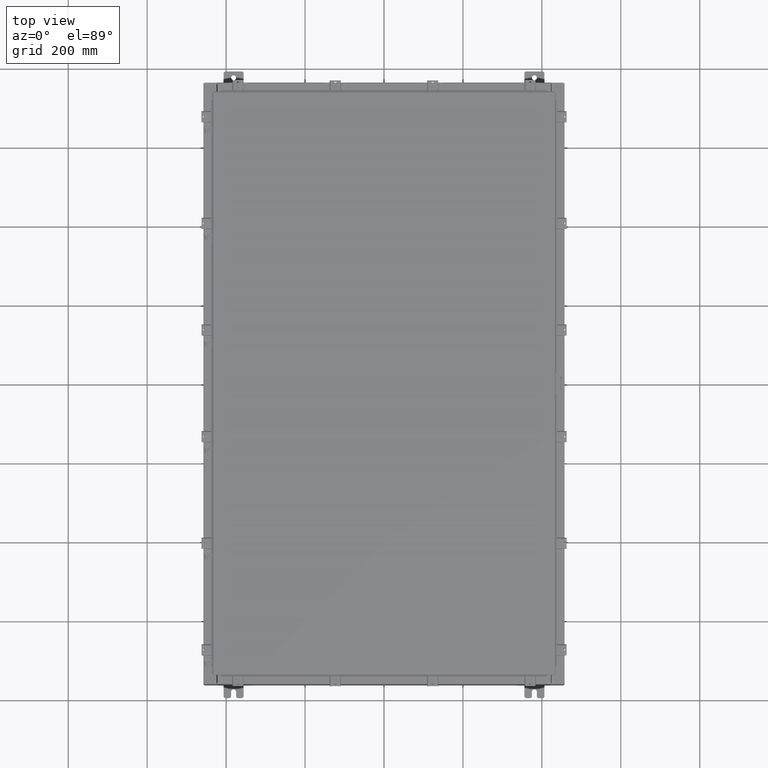
[diagram: clean part render]
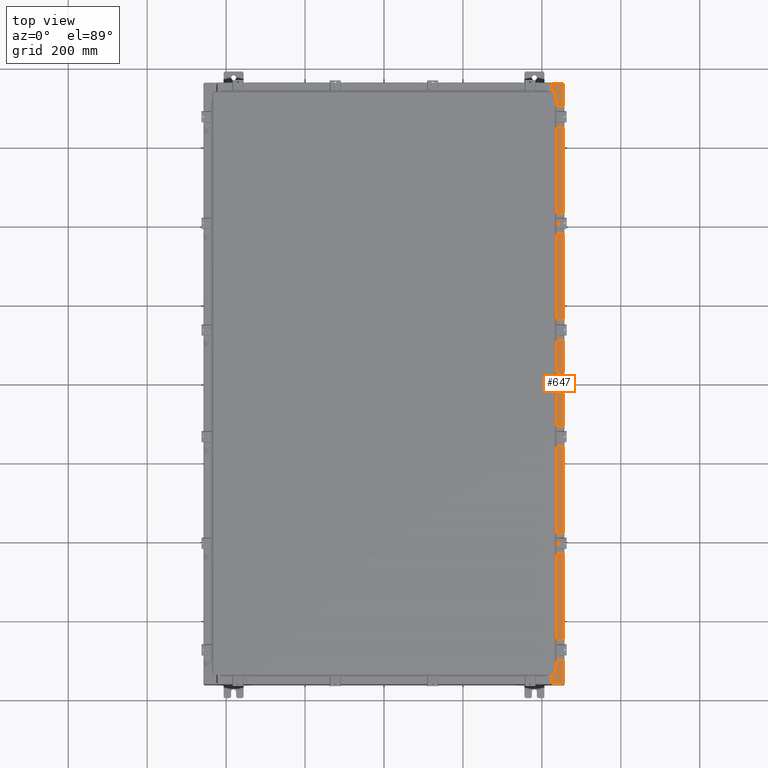
[diagram: same view with one face highlighted and labeled with its STEP entity id]
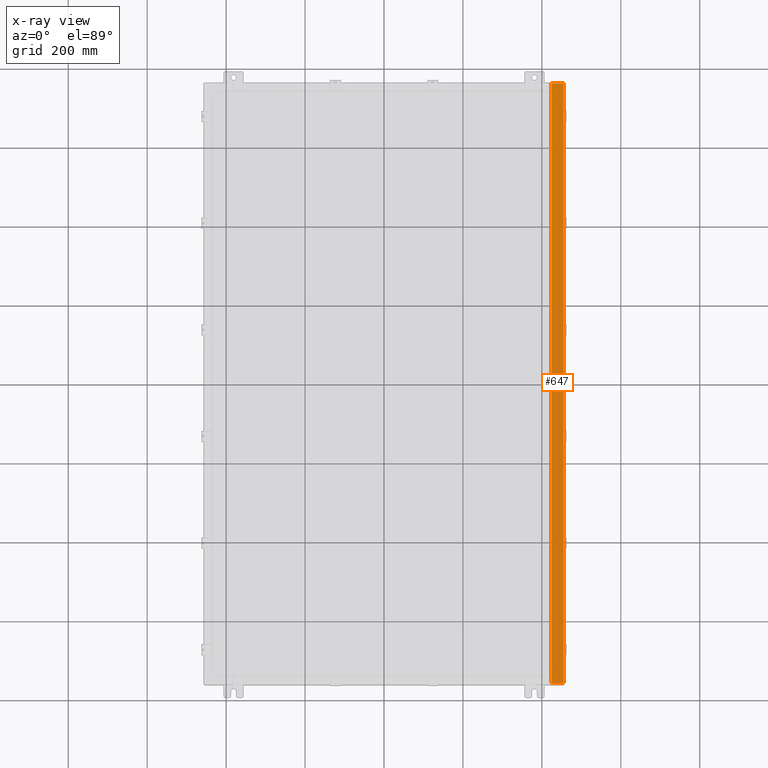
[diagram: x-ray of the same camera — body ghosted, the highlighted face saturated]
A machine part, top view. The second image highlights one B-rep face of the part: STEP entity #647.
The next image is the same camera in x-ray: the body ghosted, the highlighted face saturated — about 0% of this face is hidden behind the body in this view.
In plain terms, the highlighted planar face has unit normal (-0, -0, -1).
Its self-contained STEP definition (entity closure, byte-faithful):
#195 = CARTESIAN_POINT ( 'NONE',  ( 16.71270000000003000, 28.59374999999999600, 7.925300000000008900 ) ) ;
#441 = VERTEX_POINT ( 'NONE', #4535 ) ;
#647 = ADVANCED_FACE ( 'NONE', ( #4563 ), #13197, .F. ) ;
#787 = VECTOR ( 'NONE', #19413, 39.37007874015748100 ) ;
#1006 = CARTESIAN_POINT ( 'NONE',  ( 16.69970000000002800, -28.63110000000000700, 7.925300000000008900 ) ) ;
#1179 = EDGE_CURVE ( 'NONE', #20859, #7650, #25915, .T. ) ;
#1413 = VECTOR ( 'NONE', #18054, 39.37007874015748100 ) ;
#1577 = VERTEX_POINT ( 'NONE', #26457 ) ;
#1637 = LINE ( 'NONE', #23400, #22996 ) ;
#1984 = ORIENTED_EDGE ( 'NONE', *, *, #19063, .F. ) ;
#2291 = EDGE_CURVE ( 'NONE', #17408, #1577, #4474, .T. ) ;
#2448 = EDGE_CURVE ( 'NONE', #5107, #1577, #23184, .T. ) ;
#2490 = ORIENTED_EDGE ( 'NONE', *, *, #23996, .T. ) ;
#2653 = CARTESIAN_POINT ( 'NONE',  ( 16.75005000000003000, -28.59375000000001100, 7.925300000000007100 ) ) ;
#2856 = ORIENTED_EDGE ( 'NONE', *, *, #21561, .T. ) ;
#2900 = DIRECTION ( 'NONE',  ( -1.000000000000000000, 0.0000000000000000000, 6.241167087353087800E-015 ) ) ;
#2935 = CIRCLE ( 'NONE', #19485, 0.01867499999999949400 ) ;
#3303 = EDGE_CURVE ( 'NONE', #7650, #11279, #7122, .T. ) ;
#4474 = LINE ( 'NONE', #24817, #27194 ) ;
#4535 = CARTESIAN_POINT ( 'NONE',  ( 16.69970000000002800, -28.63110000000000700, 7.925300000000008900 ) ) ;
#4563 = FACE_OUTER_BOUND ( 'NONE', #24224, .T. ) ;
#4640 = EDGE_CURVE ( 'NONE', #441, #11582, #23423, .T. ) ;
#5107 = VERTEX_POINT ( 'NONE', #18797 ) ;
#6030 = VERTEX_POINT ( 'NONE', #13336 ) ;
#6243 = VECTOR ( 'NONE', #21884, 39.37007874015748100 ) ;
#6955 = CARTESIAN_POINT ( 'NONE',  ( 16.69970000000002800, 1.446983983731986500E-016, 7.925300000000008900 ) ) ;
#7122 = LINE ( 'NONE', #195, #787 ) ;
#7650 = VERTEX_POINT ( 'NONE', #9149 ) ;
#8640 = EDGE_CURVE ( 'NONE', #441, #5107, #27625, .T. ) ;
#8735 = CARTESIAN_POINT ( 'NONE',  ( 17.91230000000002300, 29.92529999999999300, 7.925300000000000000 ) ) ;
#9149 = CARTESIAN_POINT ( 'NONE',  ( 16.71270000000003000, 28.59374999999999600, 7.925300000000008900 ) ) ;
#9251 = VECTOR ( 'NONE', #11170, 39.37007874015748100 ) ;
#9351 = CARTESIAN_POINT ( 'NONE',  ( 4.972393517341169600E-014, 29.92529999999999300, 7.925300000000111900 ) ) ;
#9553 = CARTESIAN_POINT ( 'NONE',  ( 16.71270000000003000, -28.59375000000001100, 7.925300000000008900 ) ) ;
#9654 = AXIS2_PLACEMENT_3D ( 'NONE', #24300, #11546, #26450 ) ;
#10673 = CARTESIAN_POINT ( 'NONE',  ( 16.75005000000003000, 28.63109999999999600, 7.925300000000008900 ) ) ;
#11050 = DIRECTION ( 'NONE',  ( 1.000000000000000000, 0.0000000000000000000, -6.241167087353087800E-015 ) ) ;
#11170 = DIRECTION ( 'NONE',  ( -1.000000000000000000, 0.0000000000000000000, 0.0000000000000000000 ) ) ;
#11279 = VERTEX_POINT ( 'NONE', #17281 ) ;
#11546 = DIRECTION ( 'NONE',  ( 6.241167087353086200E-015, 1.825778183452973300E-017, 1.000000000000000000 ) ) ;
#11582 = VERTEX_POINT ( 'NONE', #12390 ) ;
#11882 = CARTESIAN_POINT ( 'NONE',  ( 4.972393517341169600E-014, -29.92530000000001100, 7.925300000000113700 ) ) ;
#12054 = CARTESIAN_POINT ( 'NONE',  ( 16.75005000000003000, -28.61242500000000900, 7.925300000000008900 ) ) ;
#12390 = CARTESIAN_POINT ( 'NONE',  ( 16.75005000000003000, -28.63110000000000700, 7.925300000000008900 ) ) ;
#12499 = VECTOR ( 'NONE', #11050, 39.37007874015748100 ) ;
#13197 = PLANE ( 'NONE',  #24302 ) ;
#13336 = CARTESIAN_POINT ( 'NONE',  ( 16.75005000000003000, 28.63109999999999600, 7.925300000000007100 ) ) ;
#13610 = CARTESIAN_POINT ( 'NONE',  ( 16.69970000000002800, 29.92529999999999300, 7.925300000000008900 ) ) ;
#14231 = DIRECTION ( 'NONE',  ( 1.000000000000000000, 0.0000000000000000000, 0.0000000000000000000 ) ) ;
#16097 = ORIENTED_EDGE ( 'NONE', *, *, #3303, .F. ) ;
#16208 = ORIENTED_EDGE ( 'NONE', *, *, #8640, .T. ) ;
#17006 = DIRECTION ( 'NONE',  ( 0.0000000000000000000, -1.000000000000000000, 1.825778183452973300E-017 ) ) ;
#17281 = CARTESIAN_POINT ( 'NONE',  ( 16.75005000000003000, 28.59374999999999600, 7.925300000000007100 ) ) ;
#17408 = VERTEX_POINT ( 'NONE', #8735 ) ;
#18054 = DIRECTION ( 'NONE',  ( 1.000000000000000000, 0.0000000000000000000, 0.0000000000000000000 ) ) ;
#18103 = VECTOR ( 'NONE', #23432, 39.37007874015748100 ) ;
#18139 = VERTEX_POINT ( 'NONE', #13610 ) ;
#18158 = EDGE_CURVE ( 'NONE', #11279, #6030, #19980, .T. ) ;
#18208 = ORIENTED_EDGE ( 'NONE', *, *, #20070, .F. ) ;
#18577 = VERTEX_POINT ( 'NONE', #19073 ) ;
#18797 = CARTESIAN_POINT ( 'NONE',  ( 16.69970000000002800, -29.92530000000001100, 7.925300000000009800 ) ) ;
#19053 = DIRECTION ( 'NONE',  ( -6.241167087353086200E-015, -1.825778183452973300E-017, -1.000000000000000000 ) ) ;
#19063 = EDGE_CURVE ( 'NONE', #11582, #22810, #2935, .T. ) ;
#19073 = CARTESIAN_POINT ( 'NONE',  ( 16.69970000000002800, 28.63109999999998900, 7.925300000000008900 ) ) ;
#19413 = DIRECTION ( 'NONE',  ( 1.000000000000000000, 0.0000000000000000000, 0.0000000000000000000 ) ) ;
#19485 = AXIS2_PLACEMENT_3D ( 'NONE', #12054, #26983, #14231 ) ;
#19957 = CARTESIAN_POINT ( 'NONE',  ( 4.972393517341169600E-014, 1.446983983732005500E-016, 7.925300000000111900 ) ) ;
#19980 = CIRCLE ( 'NONE', #9654, 0.01867499999999949400 ) ;
#20043 = DIRECTION ( 'NONE',  ( -1.000000000000000000, 0.0000000000000000000, 6.241167087353086200E-015 ) ) ;
#20070 = EDGE_CURVE ( 'NONE', #22810, #20859, #26268, .T. ) ;
#20258 = VECTOR ( 'NONE', #27081, 39.37007874015748100 ) ;
#20737 = ORIENTED_EDGE ( 'NONE', *, *, #1179, .F. ) ;
#20760 = ORIENTED_EDGE ( 'NONE', *, *, #4640, .F. ) ;
#20859 = VERTEX_POINT ( 'NONE', #9553 ) ;
#21561 = EDGE_CURVE ( 'NONE', #17408, #18139, #25185, .T. ) ;
#21884 = DIRECTION ( 'NONE',  ( 0.0000000000000000000, -1.000000000000000000, 1.825778183452973300E-017 ) ) ;
#22810 = VERTEX_POINT ( 'NONE', #2653 ) ;
#22996 = VECTOR ( 'NONE', #17006, 39.37007874015748100 ) ;
#23073 = CARTESIAN_POINT ( 'NONE',  ( 16.71270000000003000, -28.59375000000001400, 7.925300000000008900 ) ) ;
#23184 = LINE ( 'NONE', #11882, #12499 ) ;
#23313 = EDGE_CURVE ( 'NONE', #6030, #18577, #23762, .T. ) ;
#23400 = CARTESIAN_POINT ( 'NONE',  ( 16.69970000000002800, 1.446983983731986500E-016, 7.925300000000008900 ) ) ;
#23423 = LINE ( 'NONE', #1006, #1413 ) ;
#23432 = DIRECTION ( 'NONE',  ( -1.000000000000000000, 0.0000000000000000000, 0.0000000000000000000 ) ) ;
#23762 = LINE ( 'NONE', #10673, #18103 ) ;
#23821 = ORIENTED_EDGE ( 'NONE', *, *, #18158, .F. ) ;
#23996 = EDGE_CURVE ( 'NONE', #18139, #18577, #1637, .T. ) ;
#24224 = EDGE_LOOP ( 'NONE', ( #20760, #16208, #26190, #25543, #2856, #2490, #24947, #23821, #16097, #20737, #18208, #1984 ) ) ;
#24300 = CARTESIAN_POINT ( 'NONE',  ( 16.75005000000003000, 28.61242499999999500, 7.925300000000008900 ) ) ;
#24302 = AXIS2_PLACEMENT_3D ( 'NONE', #19957, #19053, #20043 ) ;
#24510 = VECTOR ( 'NONE', #2900, 39.37007874015748100 ) ;
#24817 = CARTESIAN_POINT ( 'NONE',  ( 17.91230000000002300, -29.92530000000001100, 7.925300000000000900 ) ) ;
#24947 = ORIENTED_EDGE ( 'NONE', *, *, #23313, .F. ) ;
#25185 = LINE ( 'NONE', #9351, #24510 ) ;
#25543 = ORIENTED_EDGE ( 'NONE', *, *, #2291, .F. ) ;
#25872 = DIRECTION ( 'NONE',  ( -0.0000000000000000000, -1.000000000000000000, 1.825778183452973300E-017 ) ) ;
#25915 = LINE ( 'NONE', #23073, #20258 ) ;
#26077 = CARTESIAN_POINT ( 'NONE',  ( 16.75005000000003000, -28.59375000000001100, 7.925300000000008900 ) ) ;
#26190 = ORIENTED_EDGE ( 'NONE', *, *, #2448, .T. ) ;
#26268 = LINE ( 'NONE', #26077, #9251 ) ;
#26450 = DIRECTION ( 'NONE',  ( 1.000000000000000000, 0.0000000000000000000, 0.0000000000000000000 ) ) ;
#26457 = CARTESIAN_POINT ( 'NONE',  ( 17.91230000000002300, -29.92530000000001100, 7.925300000000000900 ) ) ;
#26983 = DIRECTION ( 'NONE',  ( 6.241167087353086200E-015, 1.825778183452973300E-017, 1.000000000000000000 ) ) ;
#27081 = DIRECTION ( 'NONE',  ( -0.0000000000000000000, 1.000000000000000000, -0.0000000000000000000 ) ) ;
#27194 = VECTOR ( 'NONE', #25872, 39.37007874015748100 ) ;
#27625 = LINE ( 'NONE', #6955, #6243 ) ;